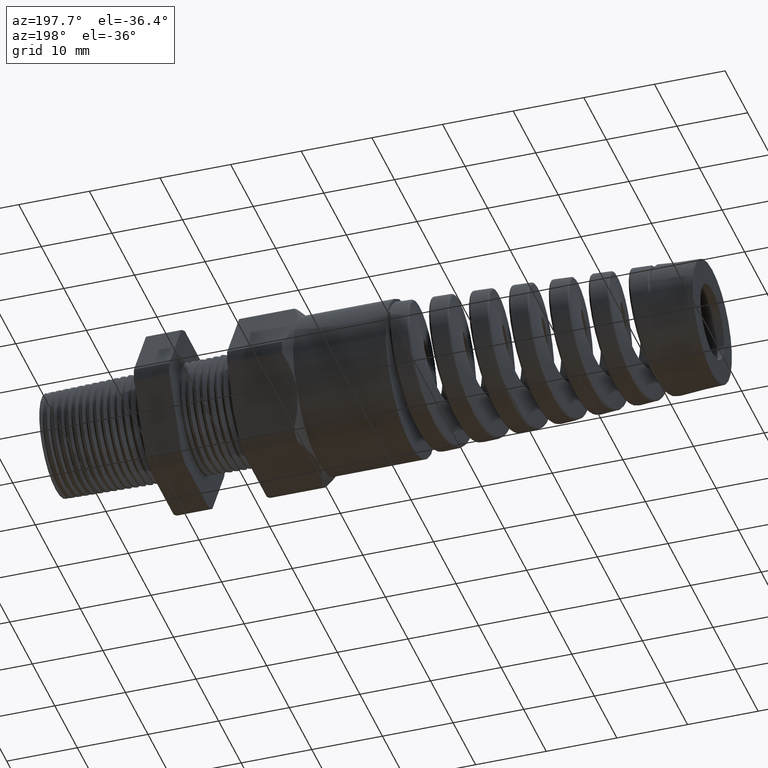
[diagram: clean part render]
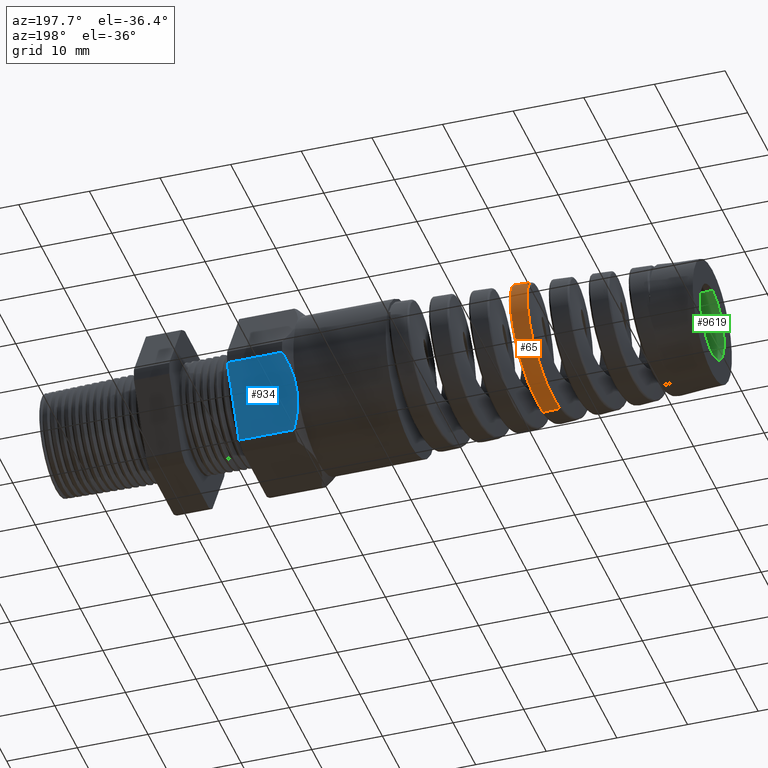
[diagram: same view with three faces highlighted in distinct colors, each labeled with its STEP entity id]
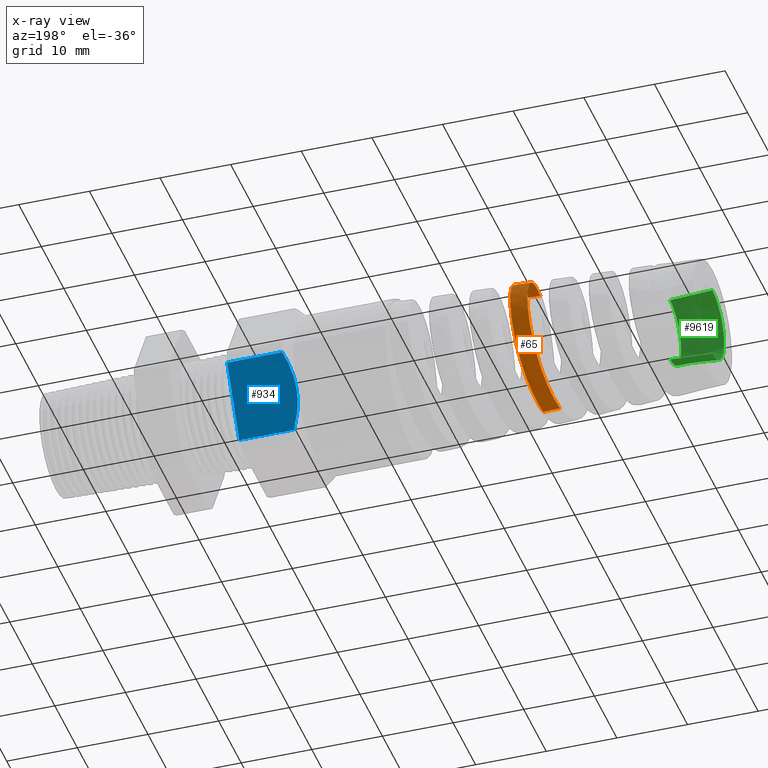
[diagram: x-ray of the same camera — body ghosted, the three highlighted faces saturated]
A machine part, auxiliary view with three faces highlighted in distinct colors.
The next image is the same camera in x-ray (body ghosted, the three faces saturated) — at least one of them is partly hidden behind the body in this view.
Their STEP definitions:

[orange] entity #65 — the highlighted conical surface has half-angle 2.5 deg.
#49 = CARTESIAN_POINT ( 'NONE',  ( -2.512561154880120600, 0.1919479977556474400, -0.3307915314784010700 ) ) ;
#50 = CARTESIAN_POINT ( 'NONE',  ( -2.509092721943484000, 0.2233303488659616500, -0.3098908551261710900 ) ) ;
#63 = CARTESIAN_POINT ( 'NONE',  ( -2.507925905386180900, 0.2335497464242270700, -0.3023281939008439200 ) ) ;
#65 = ADVANCED_FACE ( 'NONE', ( #2483 ), #2482, .T. ) ;
#76 = CARTESIAN_POINT ( 'NONE',  ( -2.504471641728214200, 0.2622714709114439800, -0.2779828724631254200 ) ) ;
#77 = ORIENTED_EDGE ( 'NONE', *, *, #78, .T. ) ;
#78 = EDGE_CURVE ( 'NONE', #14501, #14500, #2527, .T. ) ;
#134 = CARTESIAN_POINT ( 'NONE',  ( -2.455115529834778000, 0.3190308276495227300, 0.2150391065910858300 ) ) ;
#138 = CARTESIAN_POINT ( 'NONE',  ( -2.464294148317521600, 0.3636432407792619100, 0.1250889666652065500 ) ) ;
#140 = CARTESIAN_POINT ( 'NONE',  ( -2.449403722910071600, 0.2797431679254950300, 0.2639134006450272200 ) ) ;
#144 = CARTESIAN_POINT ( 'NONE',  ( -2.443676736818625600, 0.2336797490738636900, 0.3065262270189400600 ) ) ;
#145 = CARTESIAN_POINT ( 'NONE',  ( -2.460836921760218800, 0.3491641472353944100, 0.1600226852635472700 ) ) ;
#146 = CARTESIAN_POINT ( 'NONE',  ( -2.474620611138506300, 0.3832191141786691100, 0.01422544275816328200 ) ) ;
#147 = CARTESIAN_POINT ( 'NONE',  ( -2.436808435420064500, 0.1695477386038062600, 0.3458083002575474400 ) ) ;
#148 = CARTESIAN_POINT ( 'NONE',  ( -2.445952744829014600, 0.2529981248025125500, 0.2906741530172627900 ) ) ;
#150 = CARTESIAN_POINT ( 'NONE',  ( -2.466573491156143700, 0.3708908022376294400, 0.1011770835692645700 ) ) ;
#151 = CARTESIAN_POINT ( 'NONE',  ( -2.487240225350040700, 0.3631199798415411500, -0.1215835390718251900 ) ) ;
#154 = CARTESIAN_POINT ( 'NONE',  ( -2.429980840173237200, 0.09952144111696602200, 0.3729952869440589800 ) ) ;
#155 = CARTESIAN_POINT ( 'NONE',  ( -2.423114265800556700, 0.02500307067172191000, 0.3849217477617695700 ) ) ;
#156 = CARTESIAN_POINT ( 'NONE',  ( -2.459679635816103300, 0.3437318124127494200, 0.1714891947403723300 ) ) ;
#157 = CARTESIAN_POINT ( 'NONE',  ( -2.432236703320858500, 0.1233934526420863000, 0.3656865511769619200 ) ) ;
#158 = CARTESIAN_POINT ( 'NONE',  ( -2.470009710902997000, 0.3782396648998243600, 0.06440240941077163300 ) ) ;
#159 = CARTESIAN_POINT ( 'NONE',  ( -2.450557738279050200, 0.2882517611985784800, 0.2545130632405471800 ) ) ;
#160 = CARTESIAN_POINT ( 'NONE',  ( -2.435656889676903100, 0.1581074852177756200, 0.3512383199809048800 ) ) ;
#161 = CARTESIAN_POINT ( 'NONE',  ( -2.473466643107197000, 0.3825951763854698000, 0.02685768652283719900 ) ) ;
#164 = CARTESIAN_POINT ( 'NONE',  ( -2.483768998181050700, 0.3734988597131124700, -0.08516179408909706200 ) ) ;
#168 = CARTESIAN_POINT ( 'NONE',  ( -2.421973456594136700, 0.01249100232313043000, 0.3855769715376576300 ) ) ;
#169 = CARTESIAN_POINT ( 'NONE',  ( -2.439109135015474100, 0.1917879792617439600, 0.3338710296738459100 ) ) ;
#170 = CARTESIAN_POINT ( 'NONE',  ( -2.440252420232570200, 0.2025338775758423500, 0.3274004022704999900 ) ) ;
#171 = CARTESIAN_POINT ( 'NONE',  ( -2.478053379972640100, 0.3832356641551377100, -0.02336011339222508400 ) ) ;
#172 = CARTESIAN_POINT ( 'NONE',  ( -2.471157327522177200, 0.3800980855543763000, 0.05199191797542987400 ) ) ;
#173 = CARTESIAN_POINT ( 'NONE',  ( -2.484931580519425400, 0.3704206625790780200, -0.09749038739802035100 ) ) ;
#174 = CARTESIAN_POINT ( 'NONE',  ( -2.425407522575811400, 0.05006978773400418100, 0.3823685779838355000 ) ) ;
#175 = CARTESIAN_POINT ( 'NONE',  ( -2.457390985264694500, 0.3318933862726449700, 0.1936068727661514900 ) ) ;
#177 = CARTESIAN_POINT ( 'NONE',  ( -2.420834834026292200, 1.053575013072897100E-012, 0.3856266848726208600 ) ) ;
#178 = CARTESIAN_POINT ( 'NONE',  ( -2.426560166350579400, 0.06262281682373983800, 0.3804616443853578400 ) ) ;
#182 = CARTESIAN_POINT ( 'NONE',  ( -2.480322039208970900, 0.3808123624266336300, -0.04820920500459374000 ) ) ;
#183 = CARTESIAN_POINT ( 'NONE',  ( -2.452842293244404700, 0.3041518026207107900, 0.2351191138326708700 ) ) ;
#2223 = CARTESIAN_POINT ( 'NONE',  ( -2.514852586859060800, 0.1699039485636878200, -0.3425179426450271100 ) ) ;
#2478 = DIRECTION ( 'NONE',  ( 0.0000000000000000000, 0.0000000000000000000, -1.000000000000000000 ) ) ;
#2479 = DIRECTION ( 'NONE',  ( 1.000000000000000000, -0.0000000000000000000, -0.0000000000000000000 ) ) ;
#2480 = CARTESIAN_POINT ( 'NONE',  ( -1.289999999999999600, 0.0000000000000000000, 0.0000000000000000000 ) ) ;
#2481 = AXIS2_PLACEMENT_3D ( 'NONE', #2480, #2479, #2478 ) ;
#2482 = CONICAL_SURFACE ( 'NONE', #2481, 0.4349999999999998900, 0.04363323129985854200 ) ;
#2483 = FACE_OUTER_BOUND ( 'NONE', #14481, .T. ) ;
#2521 = CARTESIAN_POINT ( 'NONE',  ( -2.519463350670963800, 0.1236008456227494600, -0.3616008237455334800 ) ) ;
#2522 = CARTESIAN_POINT ( 'NONE',  ( -2.521795261916861500, 0.09915468113517947300, -0.3689465966369796500 ) ) ;
#2523 = CARTESIAN_POINT ( 'NONE',  ( -2.526388492211306700, 0.05006018631434030300, -0.3785424112471251200 ) ) ;
#2524 = CARTESIAN_POINT ( 'NONE',  ( -2.528671948264126900, 0.02519194669269704500, -0.3809184147845179900 ) ) ;
#2525 = CARTESIAN_POINT ( 'NONE',  ( -2.530991590434407400, -8.059351036915624700E-013, -0.3808171370200992300 ) ) ;
#2527 = B_SPLINE_CURVE_WITH_KNOTS ( 'NONE', 3,
 ( #2525, #2524, #2523, #2522, #2521, #2223, #49, #50, #63, #14502, #76, #14486, #14492, #14402, #14403, #14404, #151, #173, #164, #182, #171, #146, #161, #172, #158, #150, #138, #145, #156, #175, #134, #183, #159, #140, #148, #144, #170, #169, #147, #160, #157, #154, #178, #174, #155, #168, #177 ),
 .UNSPECIFIED., .F., .F.,
 ( 4, 2, 2, 2, 2, 2, 2, 2, 2, 2, 2, 2, 2, 2, 2, 1, 2, 2, 2, 2, 2, 2, 2, 4 ),
 ( 0.1647983151654645000, 0.1667298518637752000, 0.1686613885620859000, 0.1705929252603966000, 0.1715586936095519800, 0.1725244619587073300, 0.1744559986570180200, 0.1763875353553287200, 0.1773533037044840700, 0.1783190720536394200, 0.1802506087519501200, 0.1812163771011054700, 0.1821821454502608200, 0.1841136821485715200, 0.1850794504977268700, 0.1860452188468822400, 0.1870109871960375900, 0.1879767555451929400, 0.1899082922435036400, 0.1908740605926589900, 0.1918398289418143400, 0.1937713656401250700, 0.1947371339892804100, 0.1957029023384357600 ),
 .UNSPECIFIED. ) ;
#14154 = LINE ( 'NONE', #14235, #14234 ) ;
#14197 = CARTESIAN_POINT ( 'NONE',  ( -2.410819569264545800, 0.2652063003245401200, -0.2808407181292211200 ) ) ;
#14198 = CARTESIAN_POINT ( 'NONE',  ( -2.407379683848554400, 0.2920758110131452800, -0.2539589048568948700 ) ) ;
#14199 = CARTESIAN_POINT ( 'NONE',  ( -2.405113622499345000, 0.3080757098807576600, -0.2344565588786020900 ) ) ;
#14200 = CARTESIAN_POINT ( 'NONE',  ( -2.401679839574584200, 0.3291995113832817400, -0.2028349565585135500 ) ) ;
#14201 = CARTESIAN_POINT ( 'NONE',  ( -2.400523018585258400, 0.3357899940959117600, -0.1918330459088604100 ) ) ;
#14202 = CARTESIAN_POINT ( 'NONE',  ( -2.398221545072093600, 0.3477765907877246600, -0.1693634195238590500 ) ) ;
#14203 = CARTESIAN_POINT ( 'NONE',  ( -2.397077862932829500, 0.3531752555688287800, -0.1579099635067049100 ) ) ;
#14204 = CARTESIAN_POINT ( 'NONE',  ( -2.393650963946355700, 0.3676337341379447000, -0.1229123171435831700 ) ) ;
#14205 = CARTESIAN_POINT ( 'NONE',  ( -2.391371369602624900, 0.3749727239132417700, -0.09873701759622109700 ) ) ;
#14206 = CARTESIAN_POINT ( 'NONE',  ( -2.387905437889778200, 0.3824133187055153700, -0.06117078570047372600 ) ) ;
#14207 = CARTESIAN_POINT ( 'NONE',  ( -2.386753139320882500, 0.3842682852544033700, -0.04853732984032034500 ) ) ;
#14208 = CARTESIAN_POINT ( 'NONE',  ( -2.384469366709505200, 0.3867173048248419000, -0.02334359097464928200 ) ) ;
#14209 = CARTESIAN_POINT ( 'NONE',  ( -2.382197534150422700, 0.3879238208392235000, 0.001867353972322694800 ) ) ;
#14210 = CARTESIAN_POINT ( 'NONE',  ( -2.379924604975400400, 0.3866714670165298800, 0.02711010907807065100 ) ) ;
#14211 = CARTESIAN_POINT ( 'NONE',  ( -2.377638637178905800, 0.3841675744871265700, 0.05236792452769965800 ) ) ;
#14212 = CARTESIAN_POINT ( 'NONE',  ( -2.376483083069030200, 0.3822732039237214900, 0.06506952469530566400 ) ) ;
#14213 = CARTESIAN_POINT ( 'NONE',  ( -2.373044104696058600, 0.3747898767755386000, 0.1024734679005810300 ) ) ;
#14214 = CARTESIAN_POINT ( 'NONE',  ( -2.370775906168596200, 0.3674325844375647100, 0.1266127878049573800 ) ) ;
#14215 = CARTESIAN_POINT ( 'NONE',  ( -2.366207753534299600, 0.3480694584652681600, 0.1733202014171269800 ) ) ;
#14216 = CARTESIAN_POINT ( 'NONE',  ( -2.363890356619186200, 0.3359027654617428000, 0.1960630427617290300 ) ) ;
#14217 = CARTESIAN_POINT ( 'NONE',  ( -2.359340062797620000, 0.3077799293609306300, 0.2381116377243871200 ) ) ;
#14218 = CARTESIAN_POINT ( 'NONE',  ( -2.357085970061802500, 0.2917831623525767300, 0.2576247606078974600 ) ) ;
#14219 = CARTESIAN_POINT ( 'NONE',  ( -2.353662062118553300, 0.2648519285441466300, 0.2845933004568254600 ) ) ;
#14220 = CARTESIAN_POINT ( 'NONE',  ( -2.352508988293048600, 0.2553387780067186100, 0.2932252393051167900 ) ) ;
#14221 = CARTESIAN_POINT ( 'NONE',  ( -2.350224361077652100, 0.2357104459851147900, 0.3093494060040972200 ) ) ;
#14222 = CARTESIAN_POINT ( 'NONE',  ( -2.349087788020416800, 0.2255590186399258100, 0.3168848283541616000 ) ) ;
#14223 = CARTESIAN_POINT ( 'NONE',  ( -2.345679409733706100, 0.1941149399297775500, 0.3379428429086620000 ) ) ;
#14224 = CARTESIAN_POINT ( 'NONE',  ( -2.343404726990239600, 0.1718040269502275300, 0.3499480718271921800 ) ) ;
#14225 = CARTESIAN_POINT ( 'NONE',  ( -2.338806043595535100, 0.1246050911771832800, 0.3696080359410157100 ) ) ;
#14226 = CARTESIAN_POINT ( 'NONE',  ( -2.336551879561749700, 0.1004241030675609700, 0.3769767262420487500 ) ) ;
#14227 = CARTESIAN_POINT ( 'NONE',  ( -2.333160664223229200, 0.06332079975415415300, 0.3844796390647402500 ) ) ;
#14228 = CARTESIAN_POINT ( 'NONE',  ( -2.332028806008411300, 0.05081337111831125300, 0.3863846396318829100 ) ) ;
#14229 = CARTESIAN_POINT ( 'NONE',  ( -2.329749848464866900, 0.02551386708188841500, 0.3889751320288757900 ) ) ;
#14230 = CARTESIAN_POINT ( 'NONE',  ( -2.328599944916350100, 0.01269043535127136400, 0.3896537471002229400 ) ) ;
#14231 = CARTESIAN_POINT ( 'NONE',  ( -2.327461319198671100, 7.226502258065202200E-016, 0.3897034605726767400 ) ) ;
#14232 = B_SPLINE_CURVE_WITH_KNOTS ( 'NONE', 3,
 ( #14231, #14230, #14229, #14228, #14227, #14226, #14225, #14224, #14223, #14222, #14221, #14220, #14219, #14218, #14217, #14216, #14215, #14214, #14213, #14212, #14211, #14210, #14209, #14208, #14207, #14206, #14205, #14204, #14203, #14202, #14201, #14200, #14199, #14198, #14197, #14276, #14275, #14274, #14273, #14272, #14271, #14270, #14269, #14268, #14267, #14266, #14265 ),
 .UNSPECIFIED., .F., .F.,
 ( 4, 2, 2, 2, 2, 2, 2, 2, 2, 2, 2, 1, 2, 2, 2, 2, 2, 2, 2, 2, 2, 2, 2, 4 ),
 ( 0.1830093751525987100, 0.1839837815941778900, 0.1849581880357570900, 0.1869070009189154300, 0.1888558138020737800, 0.1898302202436529800, 0.1908046266852321500, 0.1927534395683905000, 0.1947022524515488500, 0.1966510653347072200, 0.1976254717762863900, 0.1985998782178655700, 0.1995742846594447400, 0.2005486911010239100, 0.2024975039841822900, 0.2034719104257614600, 0.2044463168673406300, 0.2063951297504989800, 0.2073695361920781500, 0.2083439426336573300, 0.2102927555168157000, 0.2112671619583948700, 0.2122415683999740500, 0.2141903812831323900 ),
 .UNSPECIFIED. ) ;
#14233 = DIRECTION ( 'NONE',  ( 0.9990482215818576900, 0.0000000000000000000, -0.04361938736533630500 ) ) ;
#14234 = VECTOR ( 'NONE', #14233, 39.37007874015748100 ) ;
#14235 = CARTESIAN_POINT ( 'NONE',  ( -1.289999999999999600, 0.0000000000000000000, -0.4349999999999998900 ) ) ;
#14265 = CARTESIAN_POINT ( 'NONE',  ( -2.437282601582576400, -1.107780880528268200E-012, -0.3849085598323734300 ) ) ;
#14266 = CARTESIAN_POINT ( 'NONE',  ( -2.434961614526097100, 0.02549244432572086000, -0.3850098963158113400 ) ) ;
#14267 = CARTESIAN_POINT ( 'NONE',  ( -2.432679642465592100, 0.05062953320458118300, -0.3826015087789546000 ) ) ;
#14268 = CARTESIAN_POINT ( 'NONE',  ( -2.429247171959378000, 0.08781114506332110500, -0.3753311635194439600 ) ) ;
#14269 = CARTESIAN_POINT ( 'NONE',  ( -2.428101044938510500, 0.1001170169508072000, -0.3722937081933160900 ) ) ;
#14270 = CARTESIAN_POINT ( 'NONE',  ( -2.425791729690189900, 0.1245463928772269100, -0.3649546924319619400 ) ) ;
#14271 = CARTESIAN_POINT ( 'NONE',  ( -2.424629220499816100, 0.1366598026689550500, -0.3606480413690610300 ) ) ;
#14272 = CARTESIAN_POINT ( 'NONE',  ( -2.421162554693063700, 0.1720349437669687100, -0.3460516460468086000 ) ) ;
#14273 = CARTESIAN_POINT ( 'NONE',  ( -2.418882219940667900, 0.1943112760706743600, -0.3341471654107330800 ) ) ;
#14274 = CARTESIAN_POINT ( 'NONE',  ( -2.415442726856364100, 0.2258214914425562800, -0.3131351093862479500 ) ) ;
#14275 = CARTESIAN_POINT ( 'NONE',  ( -2.414293298688272600, 0.2360052326281922600, -0.3056013725098520900 ) ) ;
#14276 = CARTESIAN_POINT ( 'NONE',  ( -2.411979810121761300, 0.2557148468222218400, -0.2894452579096794500 ) ) ;
#14285 = CARTESIAN_POINT ( 'NONE',  ( -2.530991590434407400, -8.059351036915624700E-013, -0.3808171370200992300 ) ) ;
#14286 = CARTESIAN_POINT ( 'NONE',  ( -2.420834834026292200, 1.053575013072897100E-012, 0.3856266848726208600 ) ) ;
#14287 = CARTESIAN_POINT ( 'NONE',  ( -2.327461319198671100, 7.226502258065202200E-016, 0.3897034605726767400 ) ) ;
#14288 = DIRECTION ( 'NONE',  ( 0.9990482215818576900, 5.341834311772761000E-018, 0.04361938736533630500 ) ) ;
#14289 = VECTOR ( 'NONE', #14288, 39.37007874015748100 ) ;
#14290 = CARTESIAN_POINT ( 'NONE',  ( -1.289999999999999600, 5.327213576290984500E-017, 0.4349999999999998900 ) ) ;
#14291 = LINE ( 'NONE', #14290, #14289 ) ;
#14292 = CARTESIAN_POINT ( 'NONE',  ( -2.437282601582576400, -1.107780880528268200E-012, -0.3849085598323734300 ) ) ;
#14402 = CARTESIAN_POINT ( 'NONE',  ( -2.494118530508350000, 0.3328123384161001400, -0.1900700878828817900 ) ) ;
#14403 = CARTESIAN_POINT ( 'NONE',  ( -2.491829954275865500, 0.3445724072656776200, -0.1679896979826997200 ) ) ;
#14404 = CARTESIAN_POINT ( 'NONE',  ( -2.488388476162837600, 0.3589001764771993000, -0.1333734410579202600 ) ) ;
#14463 = ORIENTED_EDGE ( 'NONE', *, *, #14489, .T. ) ;
#14481 = EDGE_LOOP ( 'NONE', ( #77, #14497, #14463, #14490 ) ) ;
#14486 = CARTESIAN_POINT ( 'NONE',  ( -2.501039567154165400, 0.2887676560114927300, -0.2515078372079968000 ) ) ;
#14488 = EDGE_CURVE ( 'NONE', #14501, #14496, #14154, .T. ) ;
#14489 = EDGE_CURVE ( 'NONE', #14499, #14496, #14232, .T. ) ;
#14490 = ORIENTED_EDGE ( 'NONE', *, *, #14488, .F. ) ;
#14492 = CARTESIAN_POINT ( 'NONE',  ( -2.498756464768947500, 0.3047002169048551000, -0.2321500148422369300 ) ) ;
#14496 = VERTEX_POINT ( 'NONE', #14292 ) ;
#14497 = ORIENTED_EDGE ( 'NONE', *, *, #14498, .T. ) ;
#14498 = EDGE_CURVE ( 'NONE', #14500, #14499, #14291, .T. ) ;
#14499 = VERTEX_POINT ( 'NONE', #14287 ) ;
#14500 = VERTEX_POINT ( 'NONE', #14286 ) ;
#14501 = VERTEX_POINT ( 'NONE', #14285 ) ;
#14502 = CARTESIAN_POINT ( 'NONE',  ( -2.505617661733564400, 0.2529979851916149800, -0.2863857731922016000 ) ) ;

[blue] entity #934 — the highlighted planar face has unit normal (0, 0.866, -0.5).
#388 = VERTEX_POINT ( 'NONE', #3389 ) ;
#812 = EDGE_CURVE ( 'NONE', #813, #814, #4436, .T. ) ;
#813 = VERTEX_POINT ( 'NONE', #4432 ) ;
#814 = VERTEX_POINT ( 'NONE', #4431 ) ;
#928 = VERTEX_POINT ( 'NONE', #4653 ) ;
#930 = EDGE_CURVE ( 'NONE', #931, #928, #4652, .T. ) ;
#931 = VERTEX_POINT ( 'NONE', #4648 ) ;
#934 = ADVANCED_FACE ( 'NONE', ( #4704 ), #4698, .T. ) ;
#935 = EDGE_LOOP ( 'NONE', ( #936, #937, #939, #995, #996 ) ) ;
#936 = ORIENTED_EDGE ( 'NONE', *, *, #930, .T. ) ;
#937 = ORIENTED_EDGE ( 'NONE', *, *, #938, .T. ) ;
#938 = EDGE_CURVE ( 'NONE', #928, #388, #4693, .T. ) ;
#939 = ORIENTED_EDGE ( 'NONE', *, *, #994, .T. ) ;
#994 = EDGE_CURVE ( 'NONE', #388, #814, #4823, .T. ) ;
#995 = ORIENTED_EDGE ( 'NONE', *, *, #812, .F. ) ;
#996 = ORIENTED_EDGE ( 'NONE', *, *, #997, .F. ) ;
#997 = EDGE_CURVE ( 'NONE', #931, #813, #4822, .T. ) ;
#3389 = CARTESIAN_POINT ( 'NONE',  ( -1.183700787401574600, 0.3767210506462309600, -0.2175000000000000300 ) ) ;
#4431 = CARTESIAN_POINT ( 'NONE',  ( -1.135850787401574600, 0.4815054990391102700, -0.03600801154045400000 ) ) ;
#4432 = CARTESIAN_POINT ( 'NONE',  ( -0.8293700787401573300, 0.4815054990391102700, -0.03600801154045400000 ) ) ;
#4433 = DIRECTION ( 'NONE',  ( -1.000000000000000000, -0.0000000000000000000, -0.0000000000000000000 ) ) ;
#4434 = VECTOR ( 'NONE', #4433, 39.37007874015748100 ) ;
#4435 = CARTESIAN_POINT ( 'NONE',  ( 0.2800000000000000300, 0.4815054990391102700, -0.03600801154045400000 ) ) ;
#4436 = LINE ( 'NONE', #4435, #4434 ) ;
#4648 = CARTESIAN_POINT ( 'NONE',  ( -0.8293700787401573300, 0.2719366022533517000, -0.3989919884595459800 ) ) ;
#4649 = DIRECTION ( 'NONE',  ( -1.000000000000000000, -0.0000000000000000000, -0.0000000000000000000 ) ) ;
#4650 = VECTOR ( 'NONE', #4649, 39.37007874015748100 ) ;
#4651 = CARTESIAN_POINT ( 'NONE',  ( 0.2800000000000000300, 0.2719366022533517000, -0.3989919884595459800 ) ) ;
#4652 = LINE ( 'NONE', #4651, #4650 ) ;
#4653 = CARTESIAN_POINT ( 'NONE',  ( -1.135850787401574600, 0.2719366022533516400, -0.3989919884595459800 ) ) ;
#4685 = CARTESIAN_POINT ( 'NONE',  ( -1.183700787401574600, 0.3767210506462309600, -0.2175000000000000300 ) ) ;
#4686 = CARTESIAN_POINT ( 'NONE',  ( -1.183700787401574400, 0.3676495597967359700, -0.2332122830517214300 ) ) ;
#4687 = CARTESIAN_POINT ( 'NONE',  ( -1.182536090834003700, 0.3584812283341805000, -0.2490922989655000300 ) ) ;
#4688 = CARTESIAN_POINT ( 'NONE',  ( -1.178089260520927400, 0.3405629272155457100, -0.2801277068882934200 ) ) ;
#4689 = CARTESIAN_POINT ( 'NONE',  ( -1.174815962699239800, 0.3317346034573625000, -0.2954188121831341500 ) ) ;
#4690 = CARTESIAN_POINT ( 'NONE',  ( -1.162280890324094400, 0.3055879730118447000, -0.3407061045614984700 ) ) ;
#4691 = CARTESIAN_POINT ( 'NONE',  ( -1.150320593554598100, 0.2886059315482656400, -0.3701198631926588800 ) ) ;
#4692 = CARTESIAN_POINT ( 'NONE',  ( -1.135850787401574600, 0.2719366022533516400, -0.3989919884595459800 ) ) ;
#4693 = B_SPLINE_CURVE_WITH_KNOTS ( 'NONE', 3,
 ( #4692, #4691, #4690, #4689, #4688, #4687, #4686, #4685 ),
 .UNSPECIFIED., .F., .F.,
 ( 4, 2, 2, 4 ),
 ( 2.483252225667815900E-007, 0.002731890542274194100, 0.004097711650800007200, 0.005463532759325819300 ),
 .UNSPECIFIED. ) ;
#4694 = DIRECTION ( 'NONE',  ( 0.0000000000000000000, 0.4999999999999998300, 0.8660254037844386000 ) ) ;
#4695 = DIRECTION ( 'NONE',  ( 0.0000000000000000000, 0.8660254037844387100, -0.4999999999999998900 ) ) ;
#4696 = CARTESIAN_POINT ( 'NONE',  ( 0.2800000000000000300, 0.4815054990391102700, -0.03600801154045400000 ) ) ;
#4697 = AXIS2_PLACEMENT_3D ( 'NONE', #4696, #4695, #4694 ) ;
#4698 = PLANE ( 'NONE',  #4697 ) ;
#4704 = FACE_OUTER_BOUND ( 'NONE', #935, .T. ) ;
#4812 = DIRECTION ( 'NONE',  ( 0.0000000000000000000, 0.4999999999999998300, 0.8660254037844386000 ) ) ;
#4813 = VECTOR ( 'NONE', #4812, 39.37007874015748900 ) ;
#4814 = CARTESIAN_POINT ( 'NONE',  ( -1.135850787401574600, 0.4815054990391102700, -0.03600801154045400000 ) ) ;
#4815 = CARTESIAN_POINT ( 'NONE',  ( -1.150338517520594000, 0.4648155211958818200, -0.06491590114212474100 ) ) ;
#4816 = CARTESIAN_POINT ( 'NONE',  ( -1.162467496876746100, 0.4475652507652401200, -0.09479424597229908800 ) ) ;
#4817 = CARTESIAN_POINT ( 'NONE',  ( -1.179123414147936100, 0.4126204045939864700, -0.1553204950035893000 ) ) ;
#4818 = CARTESIAN_POINT ( 'NONE',  ( -1.183700787401574600, 0.3948515912391095700, -0.1860969825244445400 ) ) ;
#4820 = CARTESIAN_POINT ( 'NONE',  ( -1.183700787401574600, 0.3767210506462309600, -0.2175000000000000300 ) ) ;
#4821 = CARTESIAN_POINT ( 'NONE',  ( -0.8293700787401573300, 0.4554710506462308900, -0.08110099890395097700 ) ) ;
#4822 = LINE ( 'NONE', #4821, #4813 ) ;
#4823 = B_SPLINE_CURVE_WITH_KNOTS ( 'NONE', 3,
 ( #4820, #4818, #4817, #4816, #4815, #4814 ),
 .UNSPECIFIED., .F., .F.,
 ( 4, 2, 4 ),
 ( 0.005463532759325819300, 0.008193301819514674900, 0.01092307087970353100 ),
 .UNSPECIFIED. ) ;

[green] entity #9619 — the highlighted conical surface has half-angle 3 deg.
#5585 = VERTEX_POINT ( 'NONE', #9183 ) ;
#9183 = CARTESIAN_POINT ( 'NONE',  ( -3.143780000000000000, 2.463865611660906300E-017, -0.1949999999999997600 ) ) ;
#9246 = DIRECTION ( 'NONE',  ( 0.0000000000000000000, 0.0000000000000000000, 1.000000000000000000 ) ) ;
#9247 = DIRECTION ( 'NONE',  ( -1.000000000000000000, 0.0000000000000000000, 0.0000000000000000000 ) ) ;
#9248 = CARTESIAN_POINT ( 'NONE',  ( -3.380000472440945400, 0.0000000000000000000, 0.0000000000000000000 ) ) ;
#9249 = AXIS2_PLACEMENT_3D ( 'NONE', #9248, #9247, #9246 ) ;
#9250 = CIRCLE ( 'NONE', #9249, 0.2073797903814007000 ) ;
#9251 = CARTESIAN_POINT ( 'NONE',  ( -3.143780000000000000, -0.1748009975617425500, 0.08642691277175086600 ) ) ;
#9256 = CARTESIAN_POINT ( 'NONE',  ( -3.143780000000000000, 0.0000000000000000000, 0.1949999999995798700 ) ) ;
#9257 = CARTESIAN_POINT ( 'NONE',  ( -3.380000472440945400, 2.539669964984313900E-017, -0.2073797903814007000 ) ) ;
#9304 = DIRECTION ( 'NONE',  ( 0.0000000000000000000, 0.0000000000000000000, 1.000000000000000000 ) ) ;
#9305 = DIRECTION ( 'NONE',  ( -1.000000000000000000, 0.0000000000000000000, 0.0000000000000000000 ) ) ;
#9306 = CARTESIAN_POINT ( 'NONE',  ( -3.143780000000000000, 0.0000000000000000000, 0.0000000000000000000 ) ) ;
#9307 = AXIS2_PLACEMENT_3D ( 'NONE', #9306, #9305, #9304 ) ;
#9308 = CONICAL_SURFACE ( 'NONE', #9307, 0.1949999999995798700, 0.05235987755983000100 ) ;
#9309 = FACE_OUTER_BOUND ( 'NONE', #9592, .T. ) ;
#9311 = DIRECTION ( 'NONE',  ( 0.0000000000000000000, 0.0000000000000000000, -1.000000000000000000 ) ) ;
#9312 = DIRECTION ( 'NONE',  ( 1.000000000000000000, -0.0000000000000000000, -0.0000000000000000000 ) ) ;
#9313 = CARTESIAN_POINT ( 'NONE',  ( -3.143780000000000000, 0.0000000000000000000, 0.0000000000000000000 ) ) ;
#9314 = AXIS2_PLACEMENT_3D ( 'NONE', #9313, #9312, #9311 ) ;
#9315 = CIRCLE ( 'NONE', #9314, 0.1949999999999997800 ) ;
#9316 = DIRECTION ( 'NONE',  ( -0.9986295347545738300, 6.409306129323724800E-018, -0.05233595624294395300 ) ) ;
#9317 = VECTOR ( 'NONE', #9316, 39.37007874015748900 ) ;
#9318 = CARTESIAN_POINT ( 'NONE',  ( -3.143780000000000000, 2.388061258332193500E-017, -0.1949999999995798700 ) ) ;
#9319 = LINE ( 'NONE', #9318, #9317 ) ;
#9328 = DIRECTION ( 'NONE',  ( -0.9986295347545738300, 0.0000000000000000000, 0.05233595624294395300 ) ) ;
#9329 = VECTOR ( 'NONE', #9328, 39.37007874015748900 ) ;
#9330 = CARTESIAN_POINT ( 'NONE',  ( -3.143780000000000000, 0.0000000000000000000, 0.1949999999995798700 ) ) ;
#9331 = LINE ( 'NONE', #9330, #9329 ) ;
#9342 = DIRECTION ( 'NONE',  ( 0.0000000000000000000, 0.0000000000000000000, 1.000000000000000000 ) ) ;
#9343 = DIRECTION ( 'NONE',  ( -1.000000000000000000, 0.0000000000000000000, 0.0000000000000000000 ) ) ;
#9344 = CARTESIAN_POINT ( 'NONE',  ( -3.143780000000000000, 0.0000000000000000000, 0.0000000000000000000 ) ) ;
#9345 = AXIS2_PLACEMENT_3D ( 'NONE', #9344, #9343, #9342 ) ;
#9346 = CIRCLE ( 'NONE', #9345, 0.1949999999995798700 ) ;
#9403 = CARTESIAN_POINT ( 'NONE',  ( -3.380000472440945400, 0.0000000000000000000, 0.2073797903814007000 ) ) ;
#9558 = VERTEX_POINT ( 'NONE', #9257 ) ;
#9561 = VERTEX_POINT ( 'NONE', #9256 ) ;
#9562 = ORIENTED_EDGE ( 'NONE', *, *, #9630, .F. ) ;
#9583 = ORIENTED_EDGE ( 'NONE', *, *, #9584, .T. ) ;
#9584 = EDGE_CURVE ( 'NONE', #9558, #9766, #9250, .T. ) ;
#9585 = ORIENTED_EDGE ( 'NONE', *, *, #9587, .T. ) ;
#9586 = VERTEX_POINT ( 'NONE', #9251 ) ;
#9587 = EDGE_CURVE ( 'NONE', #5585, #9558, #9319, .T. ) ;
#9592 = EDGE_LOOP ( 'NONE', ( #9608, #9585, #9583, #9749, #9562 ) ) ;
#9607 = EDGE_CURVE ( 'NONE', #9586, #5585, #9315, .T. ) ;
#9608 = ORIENTED_EDGE ( 'NONE', *, *, #9607, .T. ) ;
#9619 = ADVANCED_FACE ( 'NONE', ( #9309 ), #9308, .F. ) ;
#9630 = EDGE_CURVE ( 'NONE', #9586, #9561, #9346, .T. ) ;
#9748 = EDGE_CURVE ( 'NONE', #9561, #9766, #9331, .T. ) ;
#9749 = ORIENTED_EDGE ( 'NONE', *, *, #9748, .F. ) ;
#9766 = VERTEX_POINT ( 'NONE', #9403 ) ;